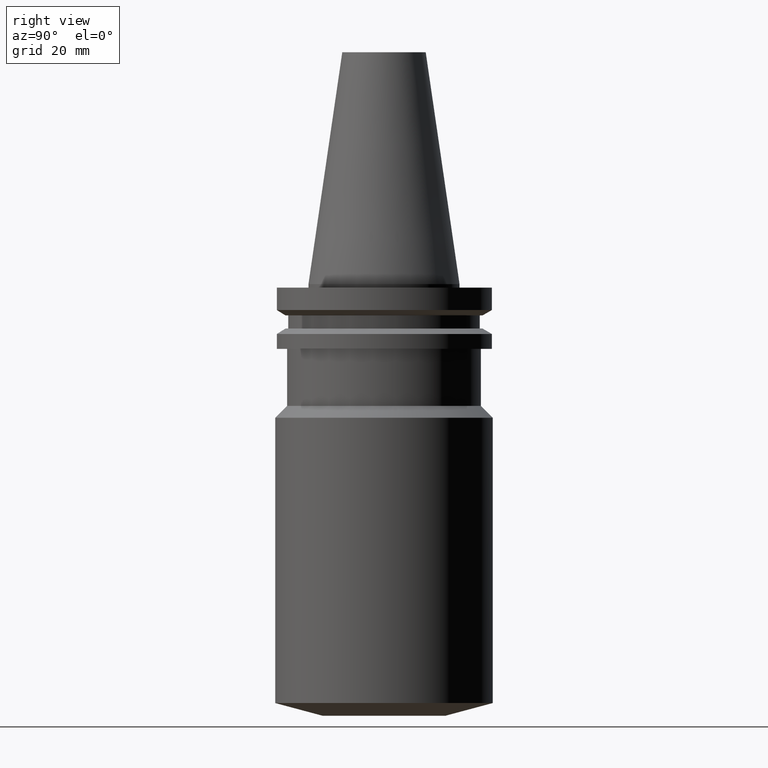
[diagram: clean part render]
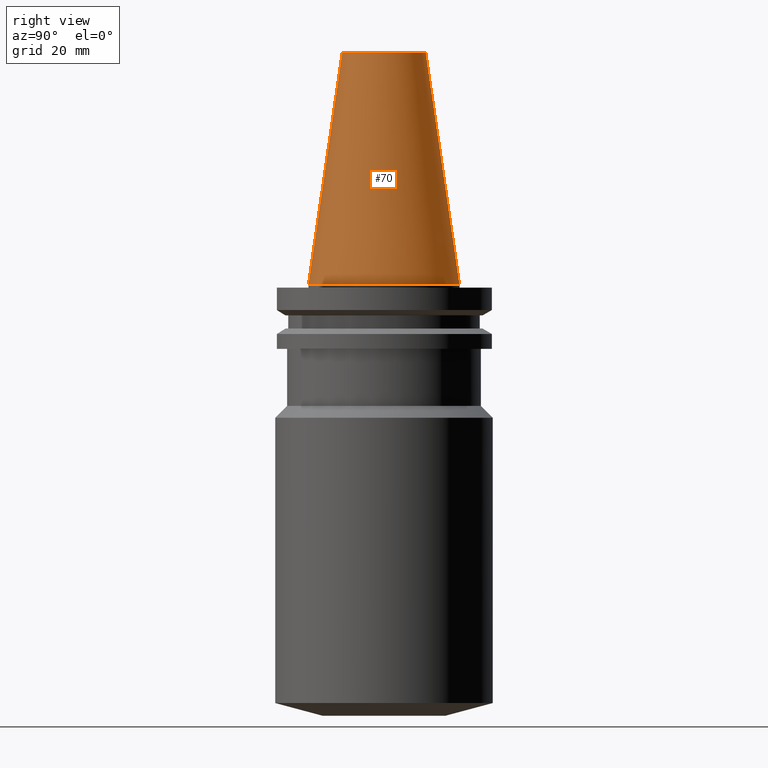
[diagram: same view with one face highlighted and labeled with its STEP entity id]
A machine part, right view. The second image highlights one B-rep face of the part: STEP entity #70.
In plain terms, the highlighted conical surface has half-angle 8.297 deg.
Its self-contained STEP definition (entity closure, byte-faithful):
#70=ADVANCED_FACE('Unnamed[1]',(#179,#180),#181,.T.);
#72=EDGE_CURVE('Unnamed[1]',#183,#183,#184,.T.);
#137=EDGE_CURVE('Unnamed[1]',#283,#283,#284,.T.);
#179=FACE_BOUND('',#324,.T.);
#180=FACE_BOUND('',#325,.T.);
#181=CONICAL_SURFACE('',#326,17.2484375007384,0.144812498217751);
#183=VERTEX_POINT('',#329);
#184=CIRCLE('',#330,22.225);
#283=VERTEX_POINT('',#454);
#284=CIRCLE('',#455,12.2718750014769);
#324=EDGE_LOOP('',(#489));
#325=EDGE_LOOP('',(#490));
#326=AXIS2_PLACEMENT_3D('',#491,#492,#493);
#329=CARTESIAN_POINT('',(-2.73944275289641E-031,22.225,2.72177751110499E-015));
#330=AXIS2_PLACEMENT_3D('',#494,#495,#496);
#454=CARTESIAN_POINT('',(-4.17910720209034E-015,12.2718750014769,68.25));
#455=AXIS2_PLACEMENT_3D('',#604,#605,#606);
#489=ORIENTED_EDGE('',*,*,#72,.F.);
#490=ORIENTED_EDGE('',*,*,#137,.T.);
#491=CARTESIAN_POINT('',(-2.08955360104517E-015,-4.17910720209034E-015,34.125));
#492=DIRECTION('',(6.12323399573677E-017,1.22464679914703E-016,-1.0));
#493=DIRECTION('',(-1.23259516440799E-032,1.0,1.22464679914703E-016));
#494=CARTESIAN_POINT('',(0.0,0.0,0.0));
#495=DIRECTION('',(6.12323399573677E-017,1.22464679914758E-016,-1.0));
#496=DIRECTION('',(-1.23259516440815E-032,1.0,1.22464679914758E-016));
#604=CARTESIAN_POINT('',(-4.17910720209034E-015,-8.35821440418068E-015,68.25));
#605=DIRECTION('',(6.12323399573677E-017,1.22464679914735E-016,-1.0));
#606=DIRECTION('',(-1.2325951644077E-032,1.0,1.22464679914735E-016));